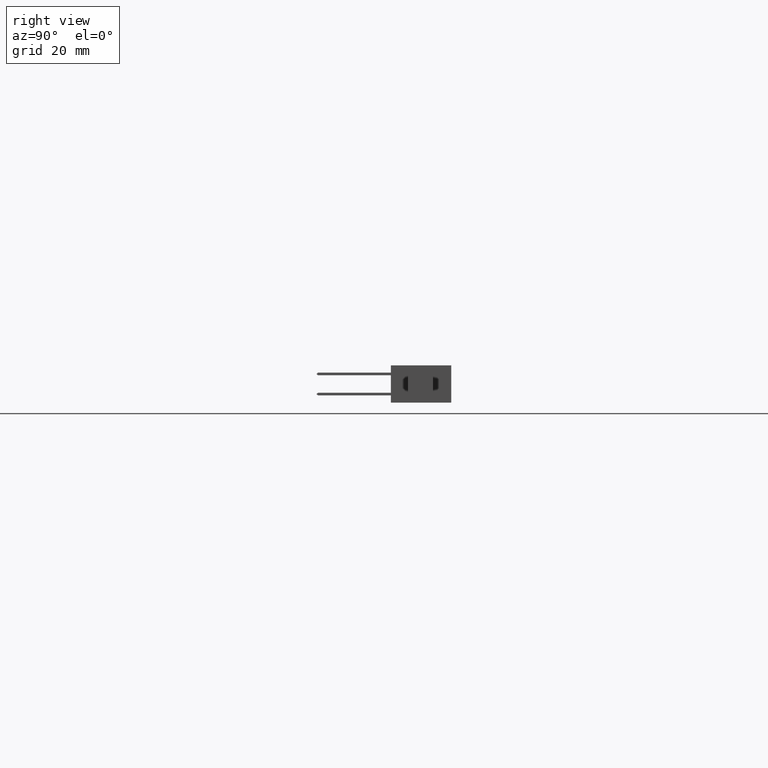
[diagram: clean part render]
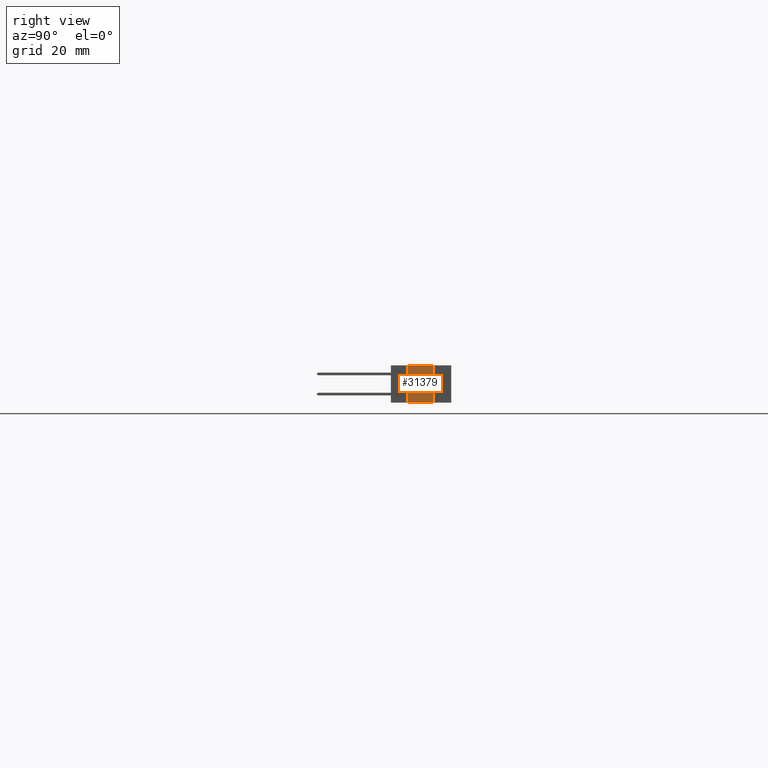
[diagram: same view with one face highlighted and labeled with its STEP entity id]
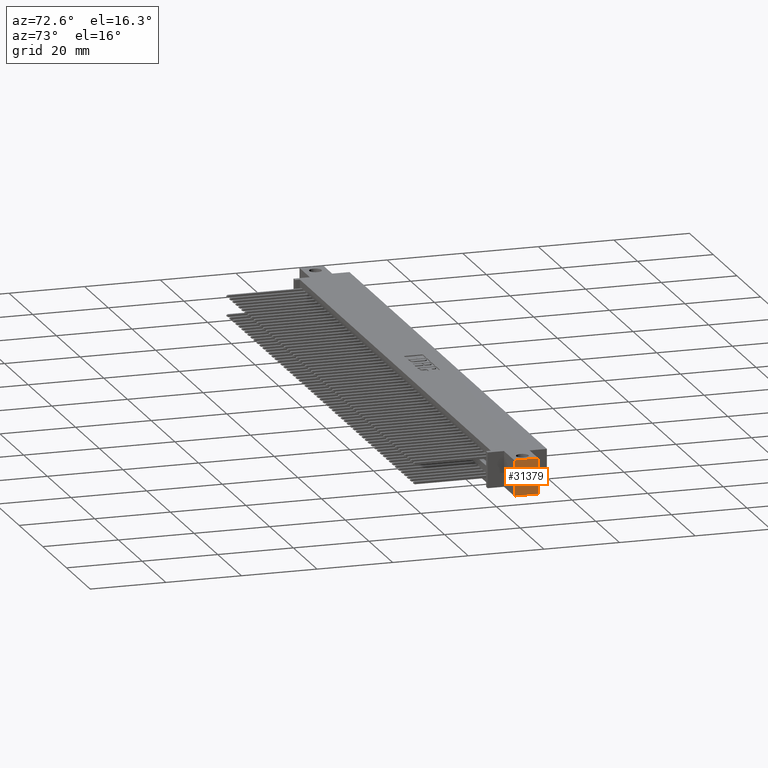
[diagram: same view with one face highlighted and labeled with its STEP entity id]
A machine part, right view. The second image highlights one B-rep face of the part: STEP entity #31379.
A second angle (auxiliary view) of the same face is appended — the face is thin or edge-on in the first view.
In plain terms, the highlighted planar face has unit normal (-1, 0, 0).
Its self-contained STEP definition (entity closure, byte-faithful):
#563 = CARTESIAN_POINT ( 'NONE',  ( 7.135000000000000700, 0.5999999999999999800, 0.0000000000000000000 ) ) ;
#1922 = PLANE ( 'NONE',  #42067 ) ;
#1980 = VECTOR ( 'NONE', #6815, 39.37007874015748100 ) ;
#6542 = VERTEX_POINT ( 'NONE', #19044 ) ;
#6815 = DIRECTION ( 'NONE',  ( 0.0000000000000000000, 0.0000000000000000000, -1.000000000000000000 ) ) ;
#7709 = DIRECTION ( 'NONE',  ( -0.0000000000000000000, -1.000000000000000000, -0.0000000000000000000 ) ) ;
#8090 = ORIENTED_EDGE ( 'NONE', *, *, #23765, .F. ) ;
#8392 = ORIENTED_EDGE ( 'NONE', *, *, #39242, .F. ) ;
#12190 = VECTOR ( 'NONE', #7709, 39.37007874015748100 ) ;
#13496 = DIRECTION ( 'NONE',  ( -0.0000000000000000000, -1.000000000000000000, -0.0000000000000000000 ) ) ;
#16917 = VECTOR ( 'NONE', #13496, 39.37007874015748100 ) ;
#17014 = ORIENTED_EDGE ( 'NONE', *, *, #44413, .T. ) ;
#17381 = EDGE_CURVE ( 'NONE', #23742, #30778, #43006, .T. ) ;
#19044 = CARTESIAN_POINT ( 'NONE',  ( 7.135000000000000700, 0.4199999999999999800, 0.0000000000000000000 ) ) ;
#20018 = CARTESIAN_POINT ( 'NONE',  ( 7.135000000000000700, 0.5999999999999999800, 0.0000000000000000000 ) ) ;
#20060 = CARTESIAN_POINT ( 'NONE',  ( 7.135000000000000700, 0.1699999999999999800, 8.737854911916364900E-016 ) ) ;
#23156 = DIRECTION ( 'NONE',  ( -1.000000000000000000, 0.0000000000000000000, 0.0000000000000000000 ) ) ;
#23618 = DIRECTION ( 'NONE',  ( 0.0000000000000000000, 0.0000000000000000000, 1.000000000000000000 ) ) ;
#23742 = VERTEX_POINT ( 'NONE', #28898 ) ;
#23765 = EDGE_CURVE ( 'NONE', #6542, #23742, #26191, .T. ) ;
#25735 = LINE ( 'NONE', #563, #12190 ) ;
#26191 = LINE ( 'NONE', #35730, #1980 ) ;
#26865 = VECTOR ( 'NONE', #35969, 39.37007874015748100 ) ;
#27457 = FACE_OUTER_BOUND ( 'NONE', #46624, .T. ) ;
#27847 = CARTESIAN_POINT ( 'NONE',  ( 7.135000000000000700, 0.5999999999999999800, -0.3700000000000000000 ) ) ;
#28898 = CARTESIAN_POINT ( 'NONE',  ( 7.135000000000000700, 0.4200000000000000400, -0.3700000000000000000 ) ) ;
#30778 = VERTEX_POINT ( 'NONE', #45115 ) ;
#31379 = ADVANCED_FACE ( 'NONE', ( #27457 ), #1922, .F. ) ;
#33792 = ORIENTED_EDGE ( 'NONE', *, *, #17381, .F. ) ;
#35730 = CARTESIAN_POINT ( 'NONE',  ( 7.135000000000000700, 0.4199999999999999800, 0.0000000000000000000 ) ) ;
#35969 = DIRECTION ( 'NONE',  ( -0.0000000000000000000, -0.0000000000000000000, 1.000000000000000000 ) ) ;
#36531 = LINE ( 'NONE', #43612, #26865 ) ;
#39242 = EDGE_CURVE ( 'NONE', #30778, #40715, #36531, .T. ) ;
#40715 = VERTEX_POINT ( 'NONE', #20060 ) ;
#42067 = AXIS2_PLACEMENT_3D ( 'NONE', #20018, #23156, #23618 ) ;
#43006 = LINE ( 'NONE', #27847, #16917 ) ;
#43612 = CARTESIAN_POINT ( 'NONE',  ( 7.135000000000000700, 0.1699999999999999800, 8.737854911916364900E-016 ) ) ;
#44413 = EDGE_CURVE ( 'NONE', #6542, #40715, #25735, .T. ) ;
#45115 = CARTESIAN_POINT ( 'NONE',  ( 7.135000000000000700, 0.1699999999999999800, -0.3699999999999991100 ) ) ;
#46624 = EDGE_LOOP ( 'NONE', ( #8392, #33792, #8090, #17014 ) ) ;